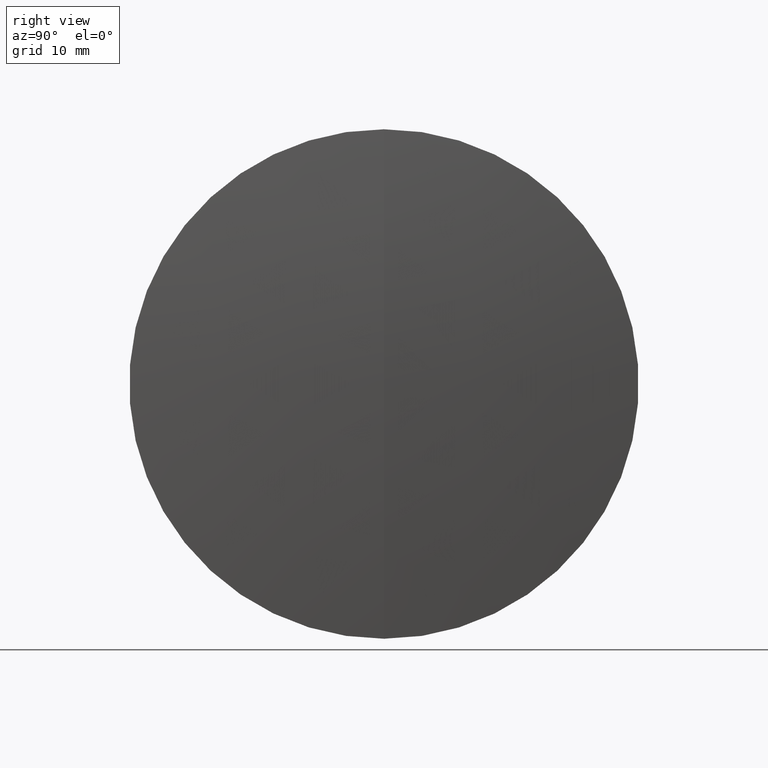
[diagram: clean part render]
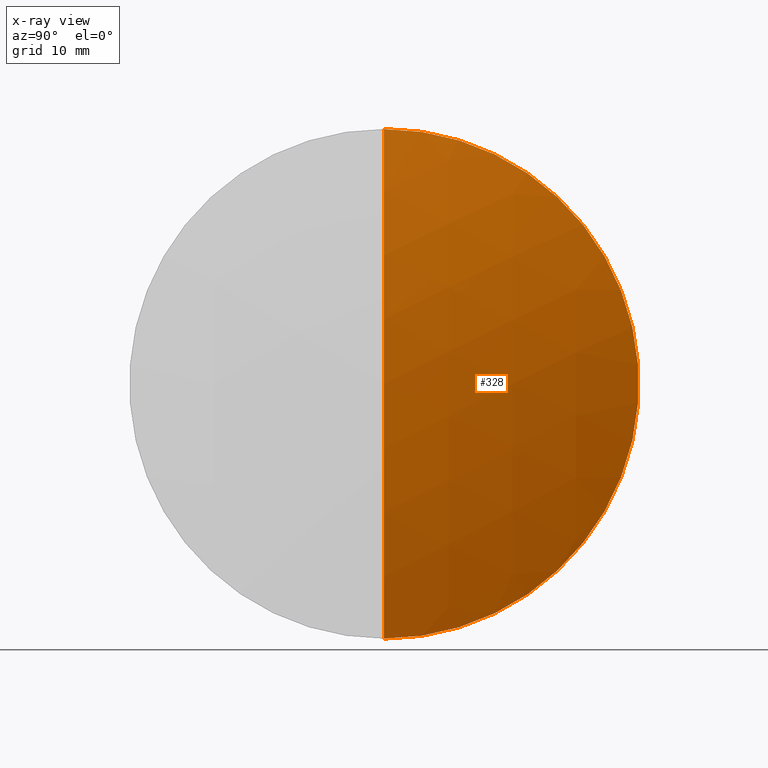
[diagram: x-ray — body ghosted, one internal face saturated and labeled with its STEP entity id]
A machine part, right view, then the same camera in x-ray: the body is ghosted and one INTERNAL B-rep face — a face not visible from any outside direction — is saturated and labeled: STEP entity #328.
In plain terms, the highlighted spherical surface has radius 94.585 mm.
Its self-contained STEP definition (entity closure, byte-faithful):
#11 = ORIENTED_EDGE ( 'NONE', *, *, #83, .F. ) ;
#12 = DIRECTION ( 'NONE',  ( 0.0000000000000000000, 1.000000000000000000, 0.0000000000000000000 ) ) ;
#23 = CIRCLE ( 'NONE', #323, 94.58500000000000800 ) ;
#25 = AXIS2_PLACEMENT_3D ( 'NONE', #97, #220, #291 ) ;
#26 = CARTESIAN_POINT ( 'NONE',  ( 310.7076255512254200, 0.0000000000000000000, 5.791660874867620200E-015 ) ) ;
#36 = AXIS2_PLACEMENT_3D ( 'NONE', #193, #202, #194 ) ;
#55 = ORIENTED_EDGE ( 'NONE', *, *, #312, .F. ) ;
#70 = CARTESIAN_POINT ( 'NONE',  ( 305.8239199956201400, 3.673940397442060000E-015, -30.00000000000000400 ) ) ;
#83 = EDGE_CURVE ( 'NONE', #91, #103, #226, .T. ) ;
#91 = VERTEX_POINT ( 'NONE', #168 ) ;
#97 = CARTESIAN_POINT ( 'NONE',  ( 305.8239199956201400, 0.0000000000000000000, 0.0000000000000000000 ) ) ;
#103 = VERTEX_POINT ( 'NONE', #70 ) ;
#118 = CARTESIAN_POINT ( 'NONE',  ( 216.1226255512254100, 0.0000000000000000000, 0.0000000000000000000 ) ) ;
#121 = DIRECTION ( 'NONE',  ( 0.0000000000000000000, 0.0000000000000000000, 1.000000000000000000 ) ) ;
#140 = DIRECTION ( 'NONE',  ( 0.0000000000000000000, -1.000000000000000000, 0.0000000000000000000 ) ) ;
#141 = DIRECTION ( 'NONE',  ( 0.0000000000000000000, 0.0000000000000000000, -1.000000000000000000 ) ) ;
#153 = FACE_OUTER_BOUND ( 'NONE', #276, .T. ) ;
#156 = AXIS2_PLACEMENT_3D ( 'NONE', #118, #12, #121 ) ;
#168 = CARTESIAN_POINT ( 'NONE',  ( 305.8239199956201400, 0.0000000000000000000, 30.00000000000000400 ) ) ;
#169 = CARTESIAN_POINT ( 'NONE',  ( 216.1226255512254100, 0.0000000000000000000, 0.0000000000000000000 ) ) ;
#179 = CIRCLE ( 'NONE', #36, 94.58500000000000800 ) ;
#193 = CARTESIAN_POINT ( 'NONE',  ( 216.1226255512254100, 0.0000000000000000000, 0.0000000000000000000 ) ) ;
#194 = DIRECTION ( 'NONE',  ( 0.0000000000000000000, -1.224646799147353200E-016, 1.000000000000000000 ) ) ;
#202 = DIRECTION ( 'NONE',  ( -0.0000000000000000000, 1.000000000000000000, 1.224646799147353200E-016 ) ) ;
#204 = EDGE_CURVE ( 'NONE', #305, #103, #179, .T. ) ;
#218 = SPHERICAL_SURFACE ( 'NONE', #156, 94.58500000000000800 ) ;
#220 = DIRECTION ( 'NONE',  ( -1.000000000000000000, -0.0000000000000000000, -0.0000000000000000000 ) ) ;
#226 = CIRCLE ( 'NONE', #25, 30.00000000000000400 ) ;
#228 = ORIENTED_EDGE ( 'NONE', *, *, #204, .T. ) ;
#276 = EDGE_LOOP ( 'NONE', ( #55, #228, #11 ) ) ;
#291 = DIRECTION ( 'NONE',  ( 0.0000000000000000000, 0.0000000000000000000, 1.000000000000000000 ) ) ;
#305 = VERTEX_POINT ( 'NONE', #26 ) ;
#312 = EDGE_CURVE ( 'NONE', #305, #91, #23, .T. ) ;
#323 = AXIS2_PLACEMENT_3D ( 'NONE', #169, #140, #141 ) ;
#328 = ADVANCED_FACE ( 'NONE', ( #153 ), #218, .T. ) ;